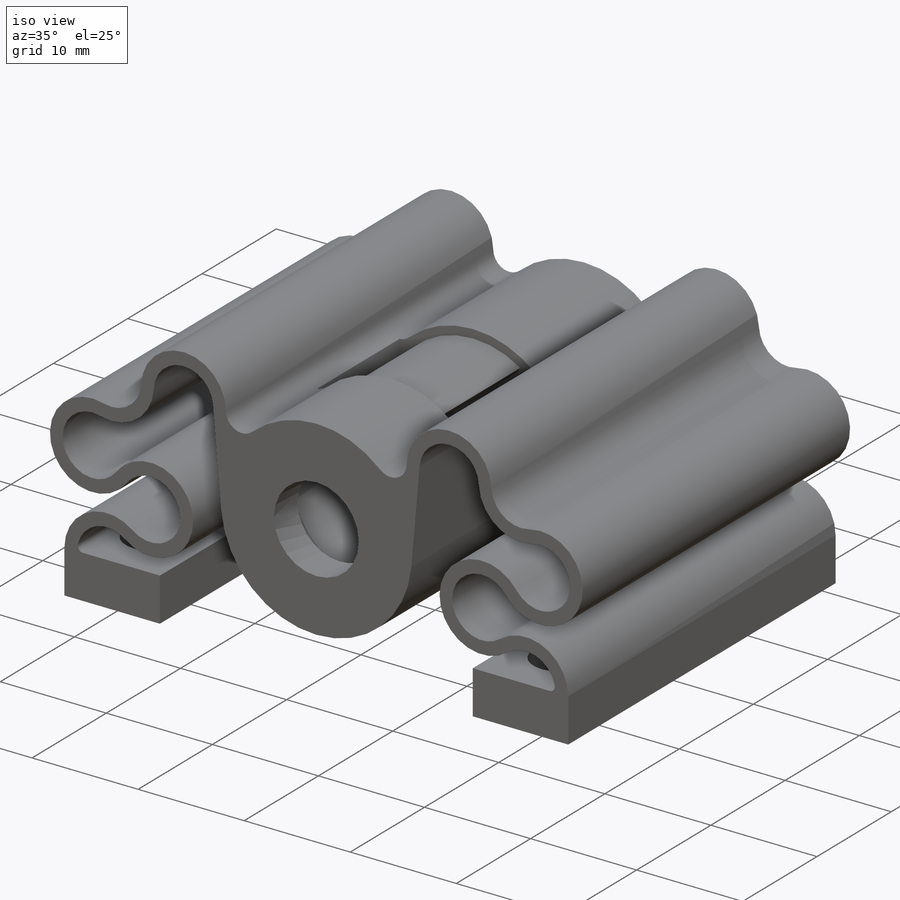
[diagram: iso view]
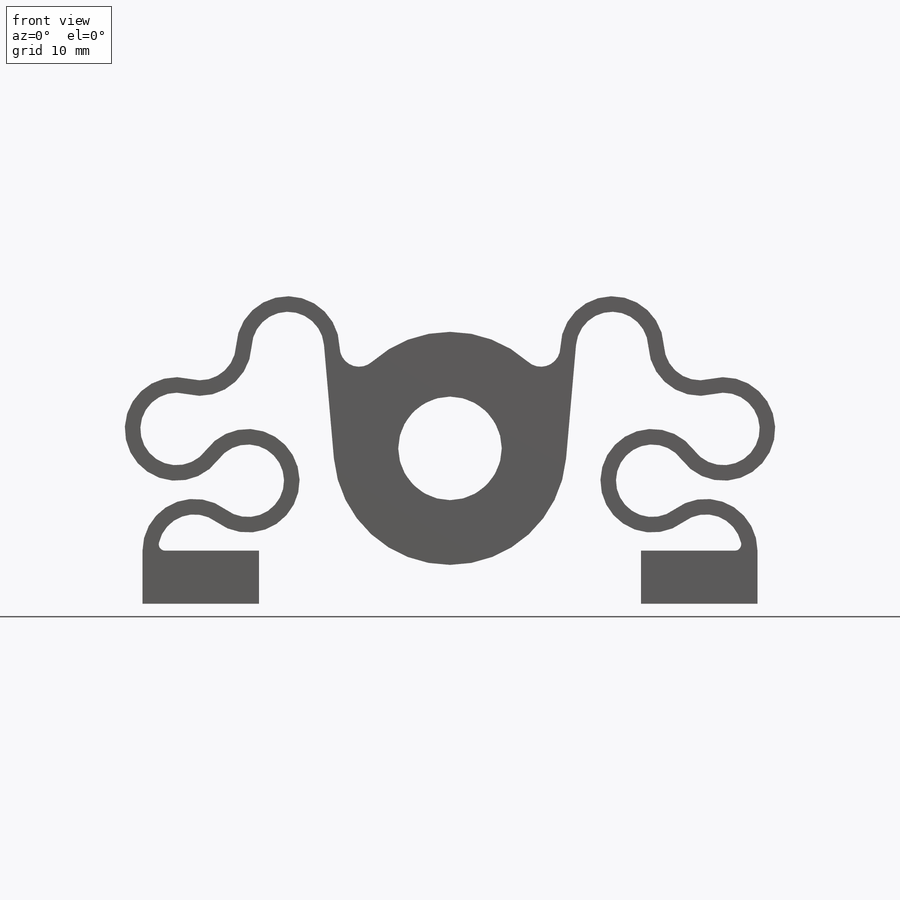
[diagram: front view]
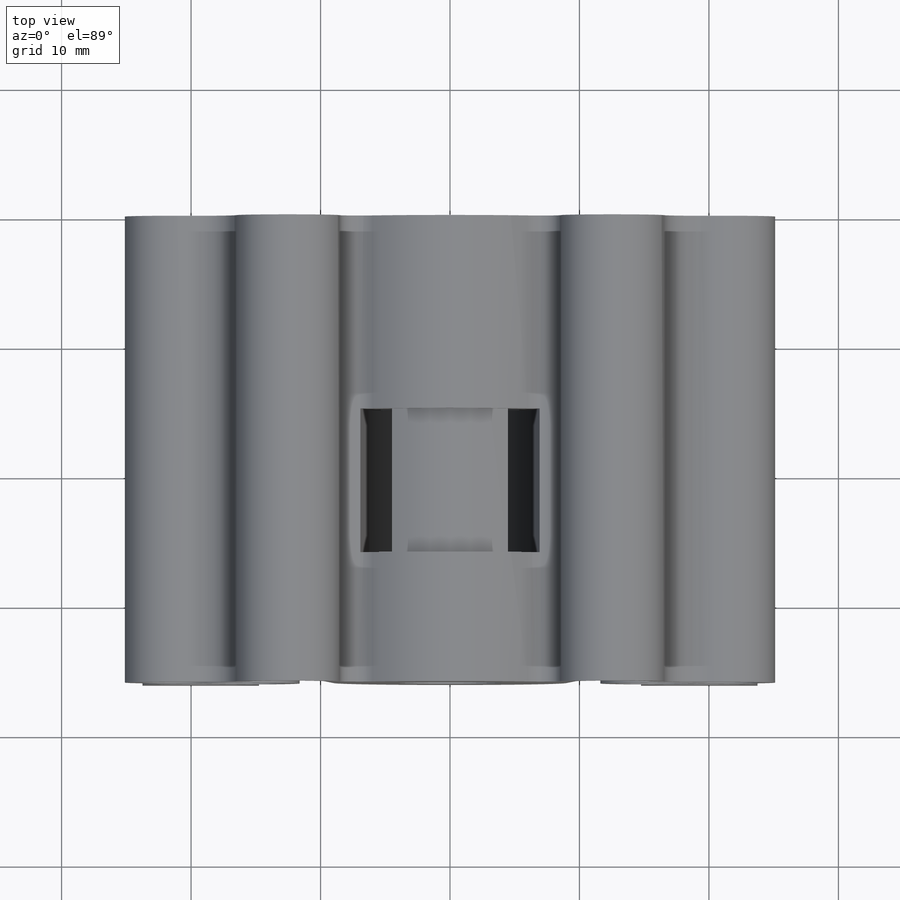
[diagram: top view]
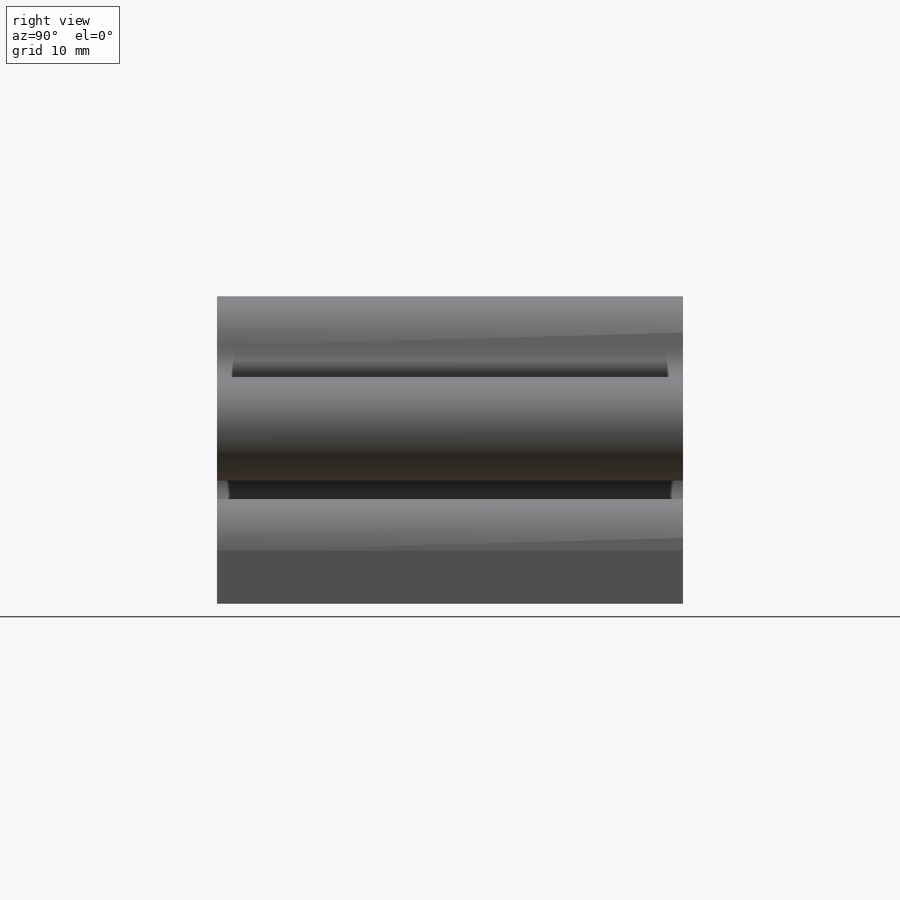
[diagram: right view]
SOLIDWORKS PART (.sldprt)
format: sldprt  version: not decoded by parser v0  size: 350,208 bytes
history: native  units: mm
features: sketch x6, cut_extrude x3, extrude x2, material x1, cut_revolve x1 (+11 scaffold rows collapsed)
feature tree (24):
  scaffold x11  (default folders/planes/origin — collapsed)
  material  "Material <not specified>"
  sketch  "Sketch1"  dims[c1.D5=8.0mm c1.D6=18.0mm c1.D7=10.0mm c1.D8=10.668mm c1.D9=~3.626484mm c1.D10=8.0mm c1.D11=1.0mm c1.D15=0.5mm c1.D14=2.5mm c2.D11=1.5mm c2.D1=12.0mm c2.D2=47.5mm c2.D3=9.0mm c2.D4=4.1mm c2.D8=~5.773503mm c2.D9=1.2mm c2.D12=15.9mm c2.D13=3.0mm c3.D12=15.8mm c3.D14=5.0mm c4.D12=5.0mm c4.D13=16.0mm c4.D14=6.0mm c4.D8=12.0mm c5.D8=5.0deg c5.D12=9.0mm c5.D13=9.0mm c5.D14=9.0mm c6.D12=9.5mm c6.D13=13.5mm c6.D14=19.75mm]
  extrude  "Boss-Extrude1"  Depth=36mm
  sketch  "Sketch2"  dims[D3=5.2mm D1=38.45mm D2=25.0mm]
  cut_extrude  "Cut-Extrude1"  Depth=4.2mm
  sketch  "Sketch3"  dims[c1.D1=~8.43873mm c2.D1=50.0deg c2.D2=9.0mm c3.D2=50.0deg c3.D1=~7.475683mm]
  cut_extrude  "Cut-Extrude2"  Depth=11.1mm
  sketch  "Sketch4"  dims[c1.D1=~13.179556mm c2.D1=~0.991118deg c3.D1=6.35mm c3.D2=~8.532819mm c4.D2=40.0deg c4.D3=4.0mm]
  cut_revolve  "Cut-Revolve1"  Angle=360deg
  sketch  "Sketch5"  dims[D1=10.7mm]
  cut_extrude  "Cut-Extrude3"  Depth=5mm
  sketch  "Sketch6"  dims[c1.D3=8.2mm c1.D1=2.65mm c2.D1=20.0deg c2.D2=0.5mm c2.D4=2.65mm c3.D4=20.0deg c3.D1=2.5mm c4.D4=2.5mm c4.D1=~6.888059mm c5.D1=28.0deg c5.D4=0.5mm c6.D4=28.0deg]
  extrude  "Boss-Extrude2"  [1 undecoded]
decode coverage: 11 of 12 modeling features carry decoded parameters
note: ~ marks probable driven/reference dimensions
note: 1 parameter value undecoded
note: suppression state not decoded; provenance and decode notes live in map.json
